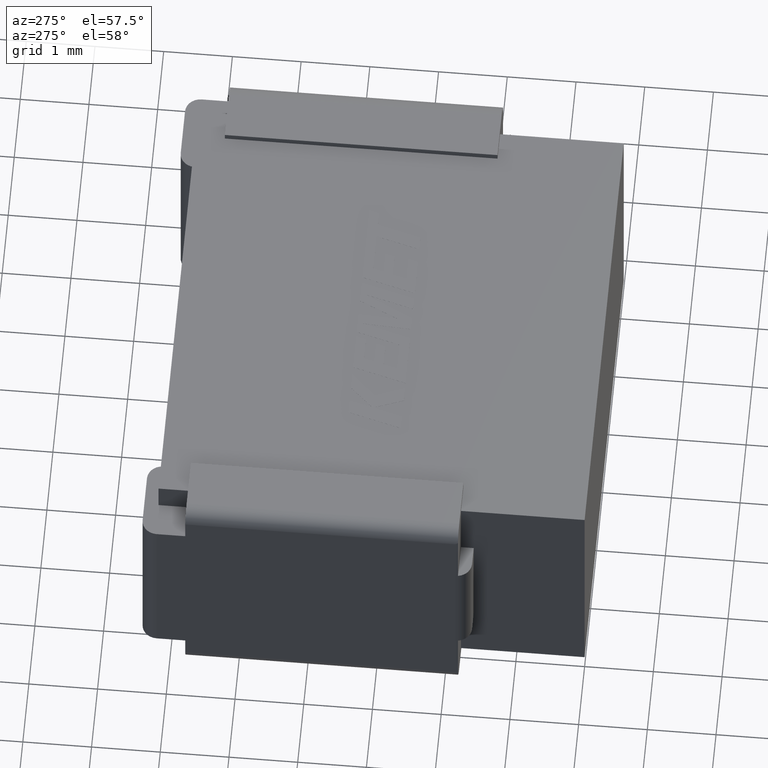
[diagram: clean part render]
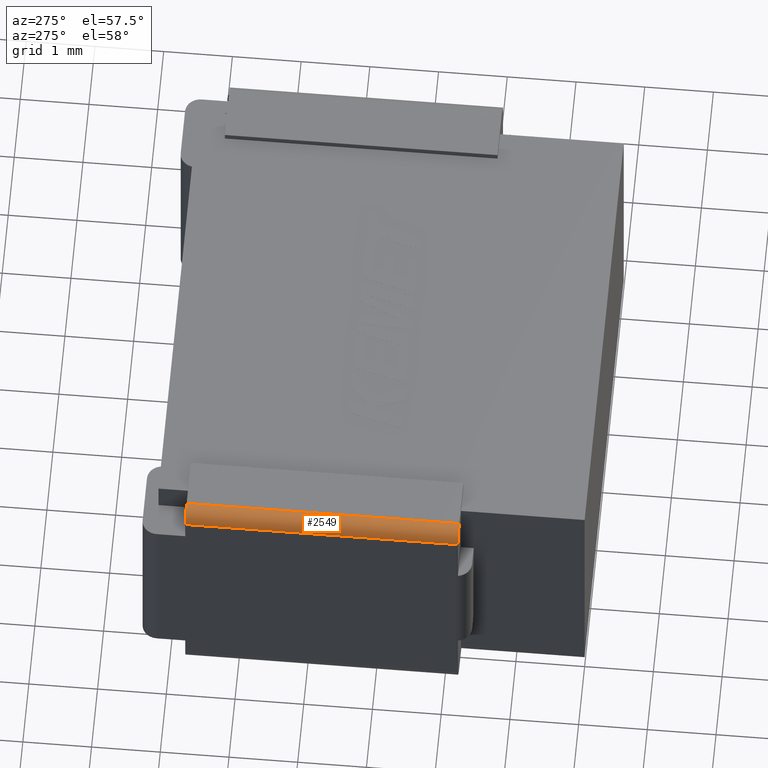
[diagram: same view with one face highlighted and labeled with its STEP entity id]
A machine part, auxiliary view. The second image highlights one B-rep face of the part: STEP entity #2549.
In plain terms, the highlighted cylindrical surface (edge-blend (fillet) strip) has radius 0.222 mm, axis along (0, -1, 0).
Its self-contained STEP definition (entity closure, byte-faithful):
#37 = CARTESIAN_POINT ( 'NONE',  ( -0.5000000000000021094, 1.835326539126282741, -0.1275117772199834409 ) ) ;
#78 = CARTESIAN_POINT ( 'NONE',  ( -0.4970616351623463602, 1.799326539126282931, -0.09151177721998839110 ) ) ;
#262 = CARTESIAN_POINT ( 'NONE',  ( -0.2780000000000047988, 5.767326539126282903, -0.1275117772199834409 ) ) ;
#309 = VERTEX_POINT ( 'NONE', #731 ) ;
#353 = AXIS2_PLACEMENT_3D ( 'NONE', #1359, #3865, #710 ) ;
#512 = CARTESIAN_POINT ( 'NONE',  ( -0.2780000000000013571, 1.799326539126282709, 0.09448822278001652031 ) ) ;
#564 = VERTEX_POINT ( 'NONE', #512 ) ;
#580 = VERTEX_POINT ( 'NONE', #1923 ) ;
#631 = ORIENTED_EDGE ( 'NONE', *, *, #964, .T. ) ;
#710 = DIRECTION ( 'NONE',  ( 0.000000000000000000, 0.000000000000000000, -1.000000000000000000 ) ) ;
#731 = CARTESIAN_POINT ( 'NONE',  ( -0.2780000000000047988, 5.767326539126282903, 0.09448822278001652031 ) ) ;
#740 = FACE_OUTER_BOUND ( 'NONE', #3899, .T. ) ;
#964 = EDGE_CURVE ( 'NONE', #564, #309, #2307, .T. ) ;
#965 = ORIENTED_EDGE ( 'NONE', *, *, #3589, .T. ) ;
#980 = DIRECTION ( 'NONE',  ( 6.938893903907228378E-16, -1.000000000000000000, 0.000000000000000000 ) ) ;
#1031 = CARTESIAN_POINT ( 'NONE',  ( -0.4970616351623463602, 1.799326539126282931, -0.09151177721998839110 ) ) ;
#1045 = ORIENTED_EDGE ( 'NONE', *, *, #2843, .T. ) ;
#1049 = CARTESIAN_POINT ( 'NONE',  ( -0.5000000000000047740, 5.767326539126282015, -0.1275117772199834409 ) ) ;
#1228 = CIRCLE ( 'NONE', #2415, 0.2219999999999999751 ) ;
#1359 = CARTESIAN_POINT ( 'NONE',  ( -0.2780000000000013571, 1.799326539126283153, -0.1275117772199834409 ) ) ;
#1401 = ORIENTED_EDGE ( 'NONE', *, *, #1998, .T. ) ;
#1463 = CYLINDRICAL_SURFACE ( 'NONE', #2801, 0.2219999999999999751 ) ;
#1636 = VECTOR ( 'NONE', #3820, 1000.000000000000000 ) ;
#1726 = CARTESIAN_POINT ( 'NONE',  ( -0.4990183760170321392, 1.811233396104518611, -0.1034186341982192281 ) ) ;
#1747 = VECTOR ( 'NONE', #2803, 1000.000000000000000 ) ;
#1923 = CARTESIAN_POINT ( 'NONE',  ( -0.5000000000000047740, 5.767326539126282015, -0.1275117772199834409 ) ) ;
#1982 = CARTESIAN_POINT ( 'NONE',  ( -0.2780000000000047988, 5.767326539126282903, 0.09448822278001652031 ) ) ;
#1998 = EDGE_CURVE ( 'NONE', #3788, #3136, #2317, .T. ) ;
#2014 = CARTESIAN_POINT ( 'NONE',  ( -0.2780000000000047988, 5.767326539126282903, -0.1275117772199834409 ) ) ;
#2307 = LINE ( 'NONE', #1982, #1636 ) ;
#2317 =( BOUNDED_CURVE ( )  B_SPLINE_CURVE ( 3, ( #37, #3488, #1726, #1031 ),
 .UNSPECIFIED., .F., .F. ) 
 B_SPLINE_CURVE_WITH_KNOTS ( ( 4, 4 ),
 ( 4.712388980384689674, 4.875270404865023721 ),
 .UNSPECIFIED. ) 
 CURVE ( )  GEOMETRIC_REPRESENTATION_ITEM ( )  RATIONAL_B_SPLINE_CURVE ( ( 1.000000000000000000, 0.9977903585054999080, 0.9977903585054999080, 1.000000000000000000 ) ) 
 REPRESENTATION_ITEM ( '' )  );
#2415 = AXIS2_PLACEMENT_3D ( 'NONE', #262, #980, #3036 ) ;
#2549 = ADVANCED_FACE ( 'NONE', ( #740 ), #1463, .T. ) ;
#2724 = CIRCLE ( 'NONE', #353, 0.2219999999999999751 ) ;
#2801 = AXIS2_PLACEMENT_3D ( 'NONE', #2014, #4521, #2892 ) ;
#2803 = DIRECTION ( 'NONE',  ( 6.938893903907228378E-16, -1.000000000000000000, 0.000000000000000000 ) ) ;
#2843 = EDGE_CURVE ( 'NONE', #3136, #564, #2724, .T. ) ;
#2892 = DIRECTION ( 'NONE',  ( 0.000000000000000000, 0.000000000000000000, -1.000000000000000000 ) ) ;
#3036 = DIRECTION ( 'NONE',  ( 0.000000000000000000, 0.000000000000000000, -1.000000000000000000 ) ) ;
#3136 = VERTEX_POINT ( 'NONE', #78 ) ;
#3379 = EDGE_CURVE ( 'NONE', #580, #3788, #3901, .T. ) ;
#3488 = CARTESIAN_POINT ( 'NONE',  ( -0.5000000000000022204, 1.823259970522387974, -0.1154452086160888125 ) ) ;
#3589 = EDGE_CURVE ( 'NONE', #309, #580, #1228, .T. ) ;
#3788 = VERTEX_POINT ( 'NONE', #3896 ) ;
#3820 = DIRECTION ( 'NONE',  ( -6.938893903907228378E-16, 1.000000000000000000, -0.000000000000000000 ) ) ;
#3865 = DIRECTION ( 'NONE',  ( -6.938893903907228378E-16, 1.000000000000000000, -0.000000000000000000 ) ) ;
#3896 = CARTESIAN_POINT ( 'NONE',  ( -0.5000000000000021094, 1.835326539126282741, -0.1275117772199834409 ) ) ;
#3899 = EDGE_LOOP ( 'NONE', ( #3949, #1401, #1045, #631, #965 ) ) ;
#3901 = LINE ( 'NONE', #1049, #1747 ) ;
#3949 = ORIENTED_EDGE ( 'NONE', *, *, #3379, .T. ) ;
#4521 = DIRECTION ( 'NONE',  ( 6.938893903907228378E-16, -1.000000000000000000, 0.000000000000000000 ) ) ;